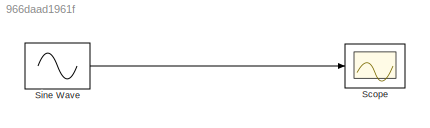
MODEL slx_966daad1961f
KIND model
BLOCK [Scope] Scope
  DataFormat = StructureWithTime
  Floating = off
  NumInputPorts = 1
  Ports = [1]
  SampleTime = 0
  ShowLegends = off
  TimeRange = 10
  YMax = 300
  YMin = -300
  ZoomMode = xonly
BLOCK [Sin] Sine Wave
  Amplitude = 220
  Ports = [0, 1]
  SampleTime = 0
LINE Sine Wave:1 -> Scope:1
